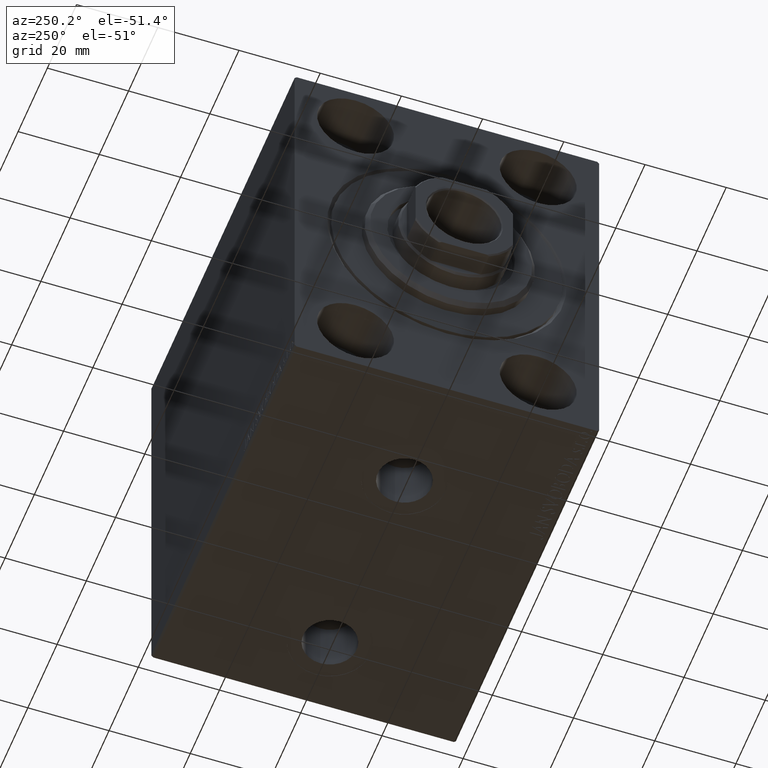
[diagram: clean part render]
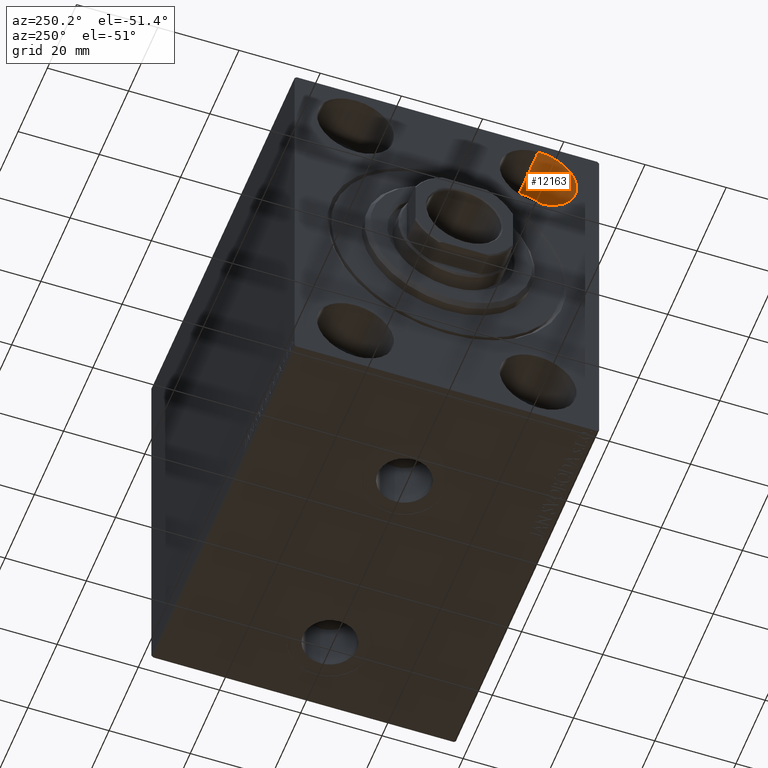
[diagram: same view with one face highlighted and labeled with its STEP entity id]
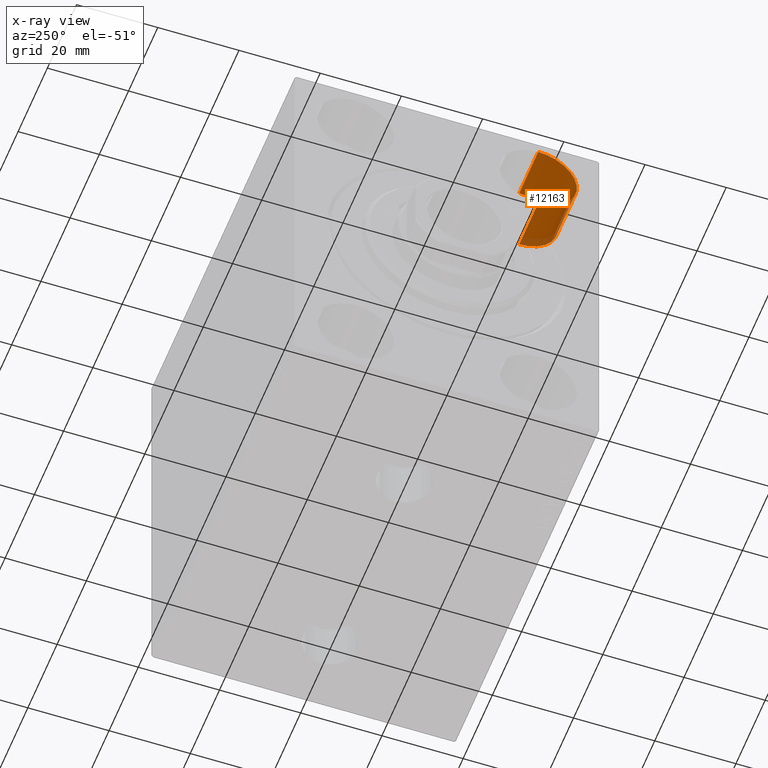
[diagram: x-ray of the same camera — body ghosted, the highlighted face saturated]
A machine part, auxiliary view. The second image highlights one B-rep face of the part: STEP entity #12163.
The next image is the same camera in x-ray: the body ghosted, the highlighted face saturated — about 8% of this face is hidden behind the body in this view.
In plain terms, the highlighted cylindrical surface (partial cylindrical patch) has radius 9.5 mm, axis along (-1, -0, -0).
Its self-contained STEP definition (entity closure, byte-faithful):
#904 = DIRECTION ( 'NONE',  ( -1.000000000000000000, -0.000000000000000000, -0.000000000000000000 ) ) ;
#1008 = DIRECTION ( 'NONE',  ( -1.000000000000000000, -0.000000000000000000, -0.000000000000000000 ) ) ;
#1850 = ORIENTED_EDGE ( 'NONE', *, *, #4870, .T. ) ;
#2858 = EDGE_CURVE ( 'NONE', #42304, #17033, #20329, .T. ) ;
#4870 = EDGE_CURVE ( 'NONE', #37378, #38398, #7217, .T. ) ;
#7217 = CIRCLE ( 'NONE', #9406, 9.500000000000001776 ) ;
#8010 = CYLINDRICAL_SURFACE ( 'NONE', #13878, 9.500000000000001776 ) ;
#8399 = DIRECTION ( 'NONE',  ( -1.000000000000000000, 0.000000000000000000, 0.000000000000000000 ) ) ;
#9056 = DIRECTION ( 'NONE',  ( 0.000000000000000000, 0.000000000000000000, 1.000000000000000000 ) ) ;
#9406 = AXIS2_PLACEMENT_3D ( 'NONE', #29491, #8399, #9056 ) ;
#10188 = VECTOR ( 'NONE', #1008, 1000.000000000000000 ) ;
#10202 = ORIENTED_EDGE ( 'NONE', *, *, #39774, .T. ) ;
#12163 = ADVANCED_FACE ( 'NONE', ( #32318 ), #8010, .F. ) ;
#12264 = AXIS2_PLACEMENT_3D ( 'NONE', #13023, #30462, #44417 ) ;
#12834 = EDGE_LOOP ( 'NONE', ( #18145, #10202, #1850, #35690 ) ) ;
#13023 = CARTESIAN_POINT ( 'NONE',  ( 13.00000000000000000, -22.49999999999999645, 37.99999999999999289 ) ) ;
#13878 = AXIS2_PLACEMENT_3D ( 'NONE', #21995, #904, #24737 ) ;
#17033 = VERTEX_POINT ( 'NONE', #27168 ) ;
#18145 = ORIENTED_EDGE ( 'NONE', *, *, #2858, .F. ) ;
#20329 = CIRCLE ( 'NONE', #12264, 9.500000000000001776 ) ;
#21357 = CARTESIAN_POINT ( 'NONE',  ( 13.00000000000000000, -22.49999999999999645, 28.49999999999998934 ) ) ;
#21412 = CARTESIAN_POINT ( 'NONE',  ( 13.00000000000000000, -22.49999999999999645, 28.49999999999998934 ) ) ;
#21995 = CARTESIAN_POINT ( 'NONE',  ( 13.00000000000000000, -22.49999999999999645, 37.99999999999999289 ) ) ;
#21996 = LINE ( 'NONE', #32319, #37676 ) ;
#22992 = EDGE_CURVE ( 'NONE', #17033, #38398, #21996, .T. ) ;
#24737 = DIRECTION ( 'NONE',  ( 0.000000000000000000, 0.000000000000000000, 1.000000000000000000 ) ) ;
#26116 = DIRECTION ( 'NONE',  ( -1.000000000000000000, -0.000000000000000000, -0.000000000000000000 ) ) ;
#27168 = CARTESIAN_POINT ( 'NONE',  ( 13.00000000000000000, -22.49999999999999645, 47.49999999999999289 ) ) ;
#27896 = CARTESIAN_POINT ( 'NONE',  ( 0.000000000000000000, -22.49999999999999645, 47.49999999999999289 ) ) ;
#27941 = CARTESIAN_POINT ( 'NONE',  ( 0.000000000000000000, -22.49999999999999645, 28.49999999999998934 ) ) ;
#29491 = CARTESIAN_POINT ( 'NONE',  ( 0.000000000000000000, -22.49999999999999645, 37.99999999999999289 ) ) ;
#30462 = DIRECTION ( 'NONE',  ( -1.000000000000000000, 0.000000000000000000, 0.000000000000000000 ) ) ;
#32318 = FACE_OUTER_BOUND ( 'NONE', #12834, .T. ) ;
#32319 = CARTESIAN_POINT ( 'NONE',  ( 13.00000000000000000, -22.49999999999999645, 47.49999999999999289 ) ) ;
#35690 = ORIENTED_EDGE ( 'NONE', *, *, #22992, .F. ) ;
#37378 = VERTEX_POINT ( 'NONE', #27941 ) ;
#37676 = VECTOR ( 'NONE', #26116, 1000.000000000000000 ) ;
#38398 = VERTEX_POINT ( 'NONE', #27896 ) ;
#39774 = EDGE_CURVE ( 'NONE', #42304, #37378, #43189, .T. ) ;
#42304 = VERTEX_POINT ( 'NONE', #21357 ) ;
#43189 = LINE ( 'NONE', #21412, #10188 ) ;
#44417 = DIRECTION ( 'NONE',  ( 0.000000000000000000, 0.000000000000000000, 1.000000000000000000 ) ) ;